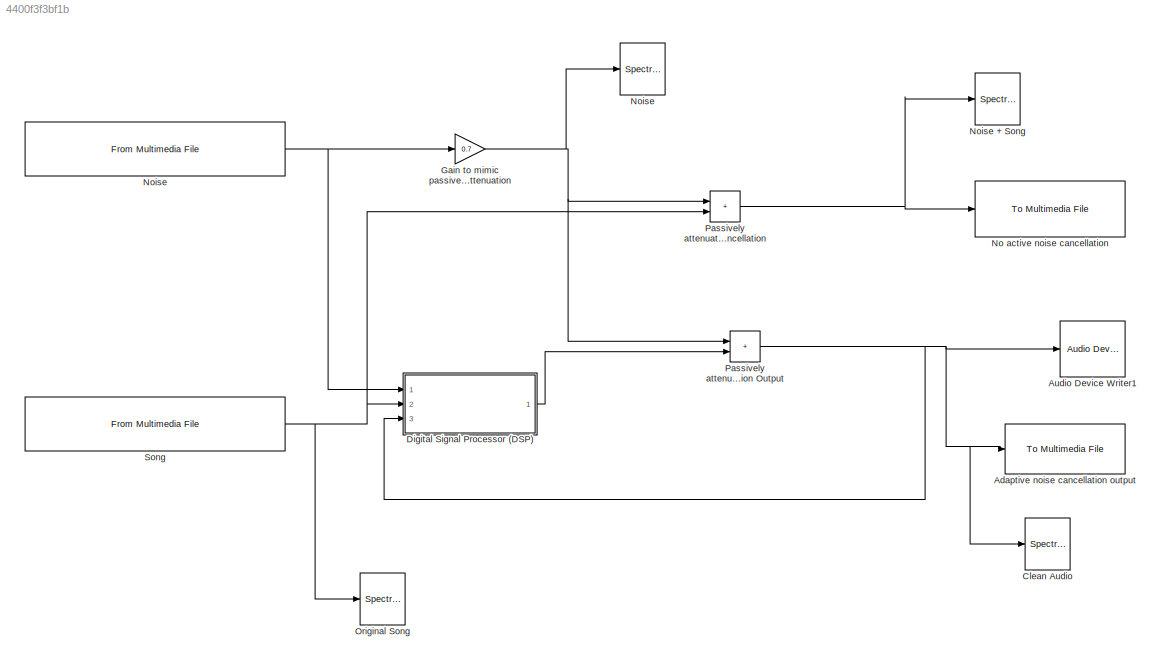
MODEL slx_4400f3f3bf1b
KIND model
CONFIG AbsTol = 1e-3
CONFIG EnableMultiTasking = off
CONFIG FixedStep = auto
CONFIG MaxStep = 1e-6
CONFIG MinStep = auto
CONFIG RelTol = 1e-12
CONFIG SampleTimeConstraint = Unconstrained
CONFIG SolverName = daessc
CONFIG StartTime = 0.0
CONFIG StopTime = 20
BLOCK [Reference] Adaptive noise cancellation output  REF=dspvision/To Multimedia File
  Ports = [1]
  SourceBlock = dspvision/To Multimedia File
  SourceProductBaseCode = DS,HW,VP
  SourceType = To Multimedia File
BLOCK [Reference] Audio Device Writer1  REF=dspsnks4/Audio Device
Writer
  Ports = [1]
  SourceBlock = dspsnks4/Audio Device\nWriter
  SourceProductBaseCode = DS
  SourceType = Audio Device Writer
BLOCK [SpectrumAnalyzer] Clean Audio
  Ports = [1]
  ScopeSpecificationString = spbscopes.SpectrumAnalyzerBlockCfg('CurrentConfiguration', extmgr.ConfigurationSet(extmgr.Configuration('Core','General UI',true),extmgr.Configuration('Core','Source UI',true),extmgr.Configuration('Sources','WiredSimulink',true),extmgr.Configuration('Visuals','Spectrum',true,'AxesProperties',struct('Color',{[0 0 0],[0 0 0]},'XColor',{[0.686274509803922 0.686274509803922 0.686274509803922],[0.68627...<+2098ch>
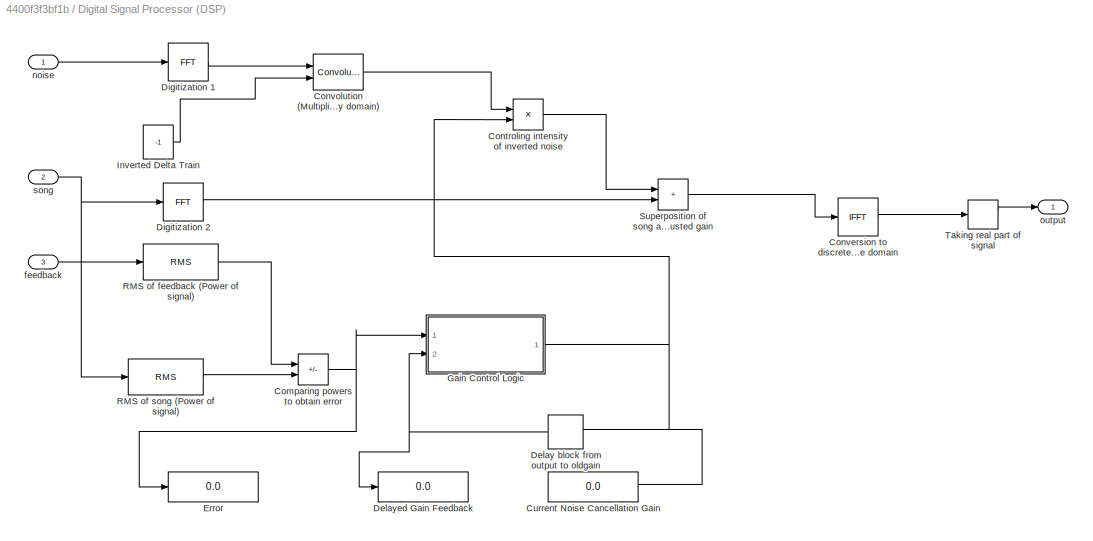
BLOCK [SubSystem] Digital Signal Processor (DSP)
  Ports = [3, 1]
  RequestExecContextInheritance = off
BLOCK [Sum] Digital Signal Processor (DSP)/Comparing powers to obtain error
  IconShape = rectangular
  Inputs = +-
  Ports = [2, 1]
BLOCK [Product] Digital Signal Processor (DSP)/Controling intensity of inverted noise
  Ports = [2, 1]
BLOCK [Reference] Digital Signal Processor (DSP)/Conversion to discrete Time domain  REF=dspxfrm3/IFFT
  Ports = [1, 1]
  SourceBlock = dspxfrm3/IFFT
  SourceProductBaseCode = DS
  SourceType = IFFT
BLOCK [Reference] Digital Signal Processor (DSP)/Convolution (Multiplication in time domain is convolution in frequency domain)  REF=dspsigops/Convolution
  Ports = [2, 1]
  SourceBlock = dspsigops/Convolution
  SourceProductBaseCode = DS
  SourceType = Convolution
BLOCK [Display] Digital Signal Processor (DSP)/Current Noise Cancellation Gain
  Decimation = 1
  NameLocation = top
  Ports = [1]
BLOCK [Delay] Digital Signal Processor (DSP)/Delay block from output to oldgain
  DelayLength = 4
  InputPortMap = u0
  NameLocation = top
  Ports = [1, 1]
BLOCK [Display] Digital Signal Processor (DSP)/Delayed Gain Feedback
  Decimation = 1
  Ports = [1]
BLOCK [Reference] Digital Signal Processor (DSP)/Digitization 1  REF=dspxfrm3/FFT
  Ports = [1, 1]
  SourceBlock = dspxfrm3/FFT
  SourceProductBaseCode = DS
  SourceType = FFT
BLOCK [Reference] Digital Signal Processor (DSP)/Digitization 2  REF=dspxfrm3/FFT
  Ports = [1, 1]
  SourceBlock = dspxfrm3/FFT
  SourceProductBaseCode = DS
  SourceType = FFT
BLOCK [Display] Digital Signal Processor (DSP)/Error
  Decimation = 1
  Ports = [1]
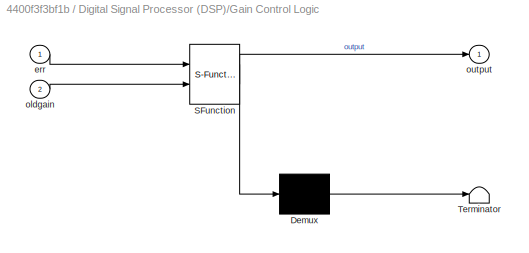
BLOCK [SubSystem] Digital Signal Processor (DSP)/Gain Control Logic
  ErrorFcn = Stateflow.Translate.translate
  PermitHierarchicalResolution = ExplicitOnly
  Ports = [2, 1]
  RequestExecContextInheritance = off
  SFBlockType = MATLAB Function
  TreatAsAtomicUnit = on
BLOCK [Demux] Digital Signal Processor (DSP)/Gain Control Logic/ Demux 
  Outputs = 1
  Ports = [1, 1]
BLOCK [S-Function] Digital Signal Processor (DSP)/Gain Control Logic/ SFunction 
  EnableBusSupport = on
  FunctionName = sf_sfun
  PortCounts = [2 2]
  Ports = [2, 2]
  SFcnIsStateOwnerBlock = off
  SFunctionDeploymentMode = off
  Tag = Stateflow S-Function 2
BLOCK [Terminator] Digital Signal Processor (DSP)/Gain Control Logic/ Terminator 
BLOCK [Inport] Digital Signal Processor (DSP)/Gain Control Logic/err
BLOCK [Inport] Digital Signal Processor (DSP)/Gain Control Logic/oldgain
  Port = 2
BLOCK [Outport] Digital Signal Processor (DSP)/Gain Control Logic/output
BLOCK [Constant] Digital Signal Processor (DSP)/Inverted Delta Train
  Value = -1
  VectorParams1D = off
BLOCK [Reference] Digital Signal Processor (DSP)/RMS of feedback (Power of signal)  REF=dspstat3/RMS
  Ports = [1, 1]
  SourceBlock = dspstat3/RMS
  SourceProductBaseCode = DS
  SourceType = RMS
  UserDataPersistent = on
BLOCK [Reference] Digital Signal Processor (DSP)/RMS of song (Power of signal)  REF=dspstat3/RMS
  Ports = [1, 1]
  SourceBlock = dspstat3/RMS
  SourceProductBaseCode = DS
  SourceType = RMS
  UserDataPersistent = on
BLOCK [Sum] Digital Signal Processor (DSP)/Superposition of song and inverted noise with adjusted gain
  IconShape = rectangular
  Ports = [2, 1]
BLOCK [ComplexToRealImag] Digital Signal Processor (DSP)/Taking real part of signal
  Ports = [1, 2]
BLOCK [Inport] Digital Signal Processor (DSP)/feedback
  Port = 3
BLOCK [Inport] Digital Signal Processor (DSP)/noise
BLOCK [Outport] Digital Signal Processor (DSP)/output
BLOCK [Inport] Digital Signal Processor (DSP)/song
  Port = 2
BLOCK [Gain] Gain to mimic passive noise attenuation
  Gain = 0.7
BLOCK [Reference] No active noise cancellation  REF=dspvision/To Multimedia File
  Ports = [1]
  SourceBlock = dspvision/To Multimedia File
  SourceProductBaseCode = DS,HW,VP
  SourceType = To Multimedia File
BLOCK [SpectrumAnalyzer] Noise
  Ports = [1]
  ScopeSpecificationString = spbscopes.SpectrumAnalyzerBlockCfg('CurrentConfiguration', extmgr.ConfigurationSet(extmgr.Configuration('Core','General UI',true),extmgr.Configuration('Core','Source UI',true),extmgr.Configuration('Sources','WiredSimulink',true),extmgr.Configuration('Visuals','Spectrum',true,'AxesProperties',struct('Color',{[0 0 0],[0 0 0]},'XColor',{[0.686274509803922 0.686274509803922 0.686274509803922],[0.68627...<+2124ch>
BLOCK [Reference] Noise   REF=dspvision/From Multimedia File
  Ports = [0, 1]
  SourceBlock = dspvision/From Multimedia File
  SourceProductBaseCode = DS,HW,VP
  SourceType = From Multimedia File
BLOCK [SpectrumAnalyzer] Noise + Song
  Ports = [1]
  ScopeSpecificationString = spbscopes.SpectrumAnalyzerBlockCfg('CurrentConfiguration', extmgr.ConfigurationSet(extmgr.Configuration('Core','General UI',true),extmgr.Configuration('Core','Source UI',true),extmgr.Configuration('Sources','WiredSimulink',true),extmgr.Configuration('Visuals','Spectrum',true,'AxesProperties',struct('Color',{[0 0 0],[0 0 0]},'XColor',{[0.686274509803922 0.686274509803922 0.686274509803922],[0.68627...<+2125ch>
BLOCK [SpectrumAnalyzer] Original Song
  Ports = [1]
  ScopeSpecificationString = spbscopes.SpectrumAnalyzerBlockCfg('CurrentConfiguration', extmgr.ConfigurationSet(extmgr.Configuration('Core','General UI',true),extmgr.Configuration('Core','Source UI',true),extmgr.Configuration('Sources','WiredSimulink',true),extmgr.Configuration('Visuals','Spectrum',true,'AxesProperties',struct('Color',{[0 0 0],[0 0 0]},'XColor',{[0.686274509803922 0.686274509803922 0.686274509803922],[0.68627...<+2124ch>
BLOCK [Sum] Passively attenuated noise + DSP output = Adaptive Noise cancellation Output
  IconShape = rectangular
  Ports = [2, 1]
BLOCK [Sum] Passively attenuated noise + Song = No active noise cancellation
  IconShape = rectangular
  Ports = [2, 1]
BLOCK [Reference] Song  REF=dspvision/From Multimedia File
  Ports = [0, 1]
  SourceBlock = dspvision/From Multimedia File
  SourceProductBaseCode = DS,HW,VP
  SourceType = From Multimedia File
NET Digital Signal Processor (DSP)/Comparing powers to obtain error:1 -> Digital Signal Processor (DSP)/Error:1, Digital Signal Processor (DSP)/Gain Control Logic:1
LINE Digital Signal Processor (DSP)/Controling intensity of inverted noise:1 -> Digital Signal Processor (DSP)/Superposition of song and inverted noise with adjusted gain:1
LINE Digital Signal Processor (DSP)/Conversion to discrete Time domain:1 -> Digital Signal Processor (DSP)/Taking real part of signal:1
LINE Digital Signal Processor (DSP)/Convolution (Multiplication in time domain is convolution in frequency domain):1 -> Digital Signal Processor (DSP)/Controling intensity of inverted noise:1
NET Digital Signal Processor (DSP)/Delay block from output to oldgain:1 -> Digital Signal Processor (DSP)/Delayed Gain Feedback:1, Digital Signal Processor (DSP)/Gain Control Logic:2
LINE Digital Signal Processor (DSP)/Digitization 1:1 -> Digital Signal Processor (DSP)/Convolution (Multiplication in time domain is convolution in frequency domain):1
LINE Digital Signal Processor (DSP)/Digitization 2:1 -> Digital Signal Processor (DSP)/Superposition of song and inverted noise with adjusted gain:2
NET Digital Signal Processor (DSP)/Gain Control Logic:1 -> Digital Signal Processor (DSP)/Controling intensity of inverted noise:2, Digital Signal Processor (DSP)/Current Noise Cancellation Gain:1, Digital Signal Processor (DSP)/Delay block from output to oldgain:1
LINE Digital Signal Processor (DSP)/Inverted Delta Train:1 -> Digital Signal Processor (DSP)/Convolution (Multiplication in time domain is convolution in frequency domain):2
LINE Digital Signal Processor (DSP)/RMS of feedback (Power of signal):1 -> Digital Signal Processor (DSP)/Comparing powers to obtain error:1
LINE Digital Signal Processor (DSP)/RMS of song (Power of signal):1 -> Digital Signal Processor (DSP)/Comparing powers to obtain error:2
LINE Digital Signal Processor (DSP)/Superposition of song and inverted noise with adjusted gain:1 -> Digital Signal Processor (DSP)/Conversion to discrete Time domain:1
LINE Digital Signal Processor (DSP)/Taking real part of signal:1 -> Digital Signal Processor (DSP)/output:1
LINE Digital Signal Processor (DSP)/feedback:1 -> Digital Signal Processor (DSP)/RMS of feedback (Power of signal):1
LINE Digital Signal Processor (DSP)/noise:1 -> Digital Signal Processor (DSP)/Digitization 1:1
NET Digital Signal Processor (DSP)/song:1 -> Digital Signal Processor (DSP)/Digitization 2:1, Digital Signal Processor (DSP)/RMS of song (Power of signal):1
LINE Digital Signal Processor (DSP):1 -> Passively attenuated noise + DSP output = Adaptive Noise cancellation Output:2
NET Gain to mimic passive noise attenuation:1 -> Noise:1, Passively attenuated noise + DSP output = Adaptive Noise cancellation Output:1, Passively attenuated noise + Song = No active noise cancellation:1
NET Noise :1 -> Digital Signal Processor (DSP):1, Gain to mimic passive noise attenuation:1
NET Passively attenuated noise + DSP output = Adaptive Noise cancellation Output:1 -> Adaptive noise cancellation output:1, Audio Device Writer1:1, Clean Audio:1, Digital Signal Processor (DSP):3
NET Passively attenuated noise + Song = No active noise cancellation:1 -> No active noise cancellation:1, Noise + Song:1
NET Song:1 -> Digital Signal Processor (DSP):2, Original Song:1, Passively attenuated noise + Song = No active noise cancellation:2
note: NET lines group one-source signal fan-out (src -> all destinations, sorted); 1:1 wires keep LINE
CHART Digital Signal Processor (DSP)/Gain Control Logic states=1 transitions=1
  STATE_LABEL 'eML_blk_kernel()'
  STATE_LABEL 'SCRIPT:\nfunction output  = fcn(err,oldgain)\nreq_err = 0.0001;\n\n\nif((req_err<=err))\noutput=oldgain+0.005;\nelse\noutput=oldgain;    \nend\nend'
CHART  states=0 transitions=0
